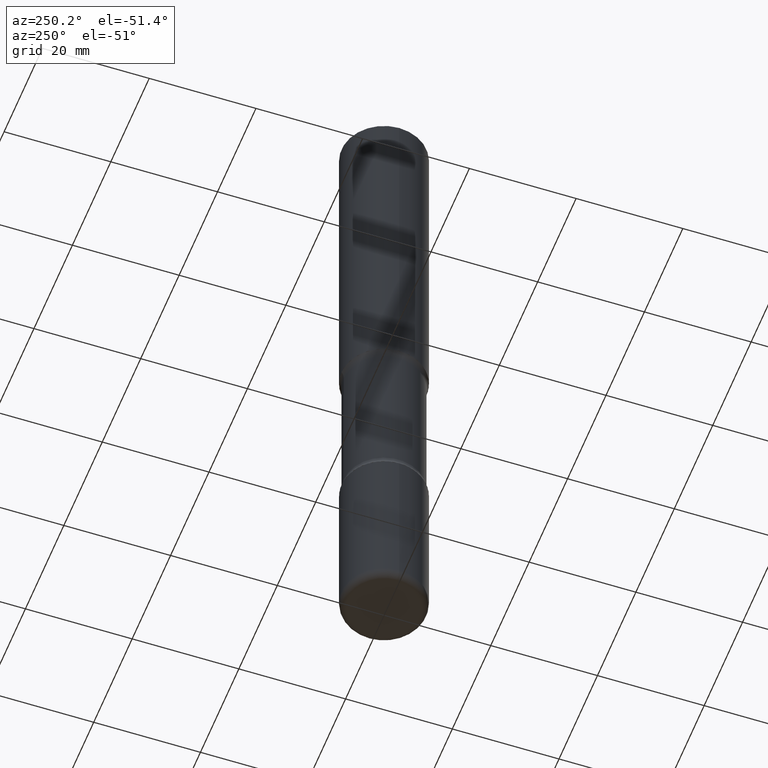
[diagram: clean part render]
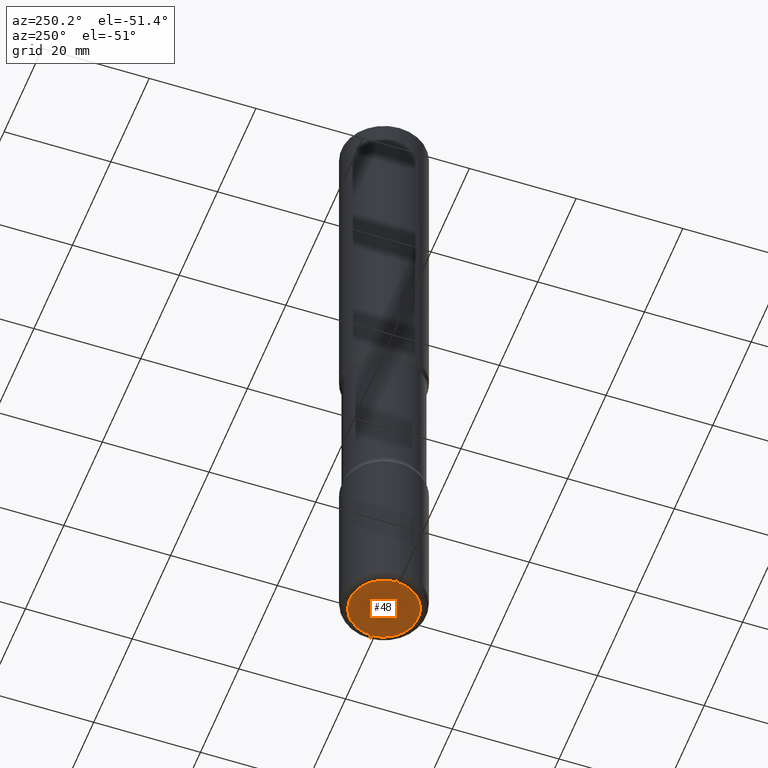
[diagram: same view with one face highlighted and labeled with its STEP entity id]
A machine part, auxiliary view. The second image highlights one B-rep face of the part: STEP entity #48.
In plain terms, the highlighted planar face has unit normal (0, -0, -1).
Its self-contained STEP definition (entity closure, byte-faithful):
#11 = AXIS2_PLACEMENT_3D ( 'NONE', #481, #136, #193 ) ;
#41 = AXIS2_PLACEMENT_3D ( 'NONE', #128, #225, #395 ) ;
#48 = ADVANCED_FACE ( 'NONE', ( #125 ), #346, .T. ) ;
#109 = CARTESIAN_POINT ( 'NONE',  ( 1.222734403092568523E-28, -1.745740669421572989E-14, -5.000000000000000000 ) ) ;
#115 = CIRCLE ( 'NONE', #11, 0.2525000000000002798 ) ;
#125 = FACE_OUTER_BOUND ( 'NONE', #376, .T. ) ;
#128 = CARTESIAN_POINT ( 'NONE',  ( 1.222734403092568523E-28, -1.745740669421572989E-14, -5.000000000000000000 ) ) ;
#136 = DIRECTION ( 'NONE',  ( -2.445468806185136597E-29, 3.491481338843145583E-15, 1.000000000000000000 ) ) ;
#155 = CARTESIAN_POINT ( 'NONE',  ( 0.2525000000000002798, -1.922060477033151318E-14, -5.000000000000000000 ) ) ;
#193 = DIRECTION ( 'NONE',  ( 1.000000000000000000, -6.982962677686261977E-15, 0.000000000000000000 ) ) ;
#209 = DIRECTION ( 'NONE',  ( 1.000000000000000000, -6.982962677686261977E-15, 0.000000000000000000 ) ) ;
#219 = VERTEX_POINT ( 'NONE', #155 ) ;
#222 = EDGE_CURVE ( 'NONE', #506, #219, #248, .T. ) ;
#225 = DIRECTION ( 'NONE',  ( 2.438088387897960049E-29, -3.491481338843145188E-15, -1.000000000000000000 ) ) ;
#248 = CIRCLE ( 'NONE', #463, 0.2525000000000002798 ) ;
#330 = EDGE_CURVE ( 'NONE', #219, #506, #115, .T. ) ;
#339 = CARTESIAN_POINT ( 'NONE',  ( -0.2525000000000002798, -1.534537902552815526E-14, -5.000000000000000000 ) ) ;
#346 = PLANE ( 'NONE',  #41 ) ;
#358 = ORIENTED_EDGE ( 'NONE', *, *, #330, .F. ) ;
#376 = EDGE_LOOP ( 'NONE', ( #358, #426 ) ) ;
#395 = DIRECTION ( 'NONE',  ( -1.000000000000000000, 6.982962677686265922E-15, -4.876176775795935793E-29 ) ) ;
#426 = ORIENTED_EDGE ( 'NONE', *, *, #222, .F. ) ;
#460 = DIRECTION ( 'NONE',  ( -2.445468806185136597E-29, 3.491481338843145583E-15, 1.000000000000000000 ) ) ;
#463 = AXIS2_PLACEMENT_3D ( 'NONE', #109, #460, #209 ) ;
#481 = CARTESIAN_POINT ( 'NONE',  ( 1.222734403092568523E-28, -1.745740669421572989E-14, -5.000000000000000000 ) ) ;
#506 = VERTEX_POINT ( 'NONE', #339 ) ;